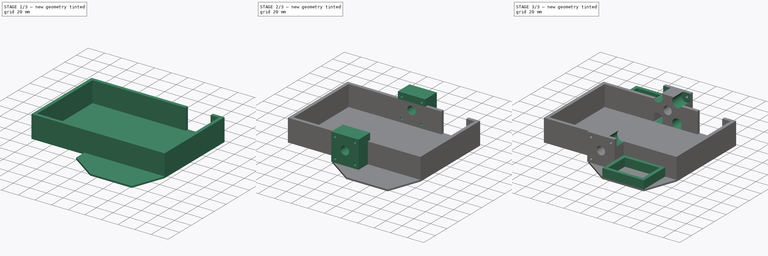
[diagram: build sequence overview — one tinted view per stage of 3, left to right]
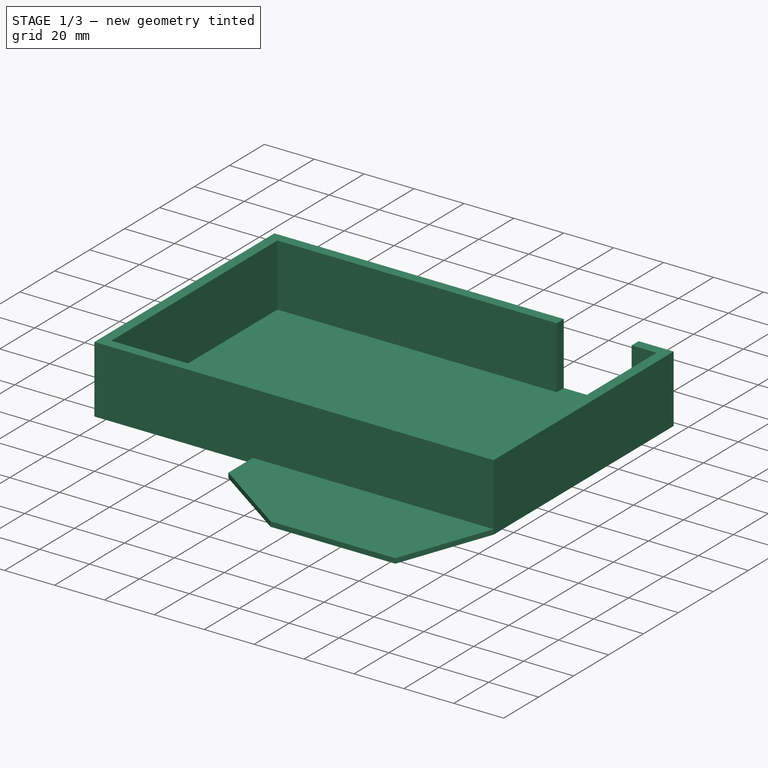
[diagram: stage 1 of 3 — iso view after this stage's code; geometry added in this stage tinted green]
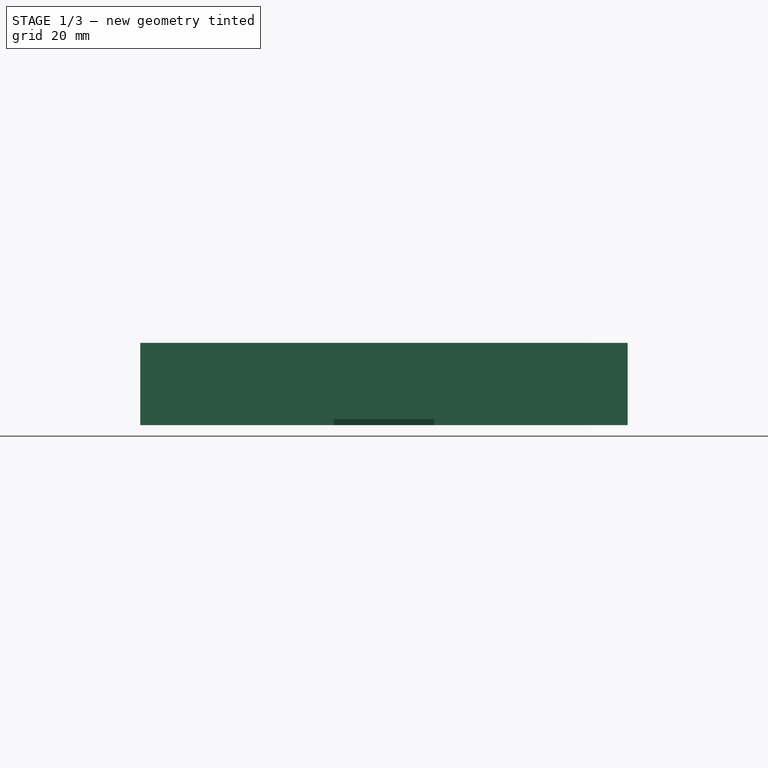
[diagram: stage 1 of 3 — front view after this stage's code; geometry added in this stage tinted green]
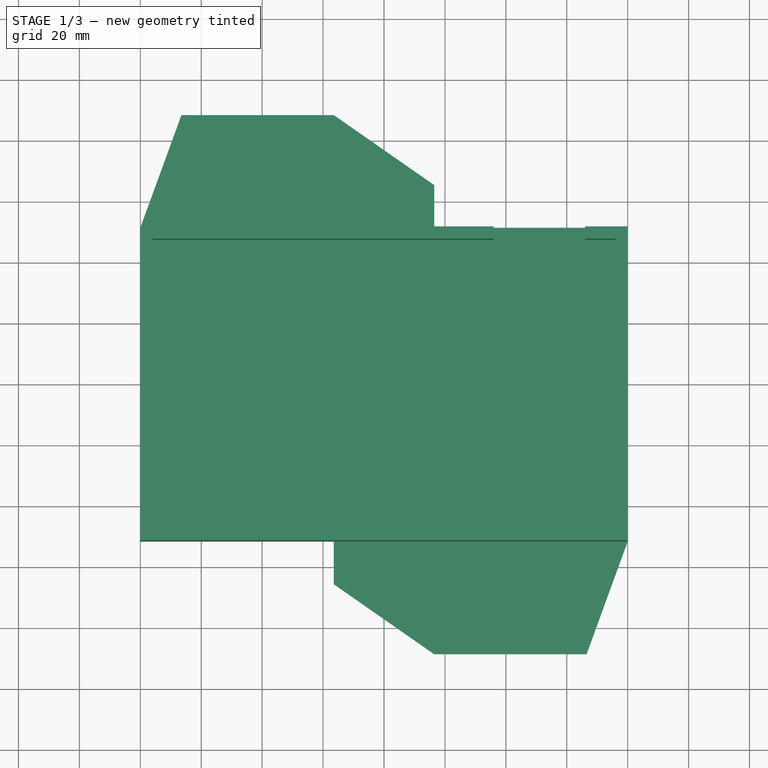
[diagram: stage 1 of 3 — top view after this stage's code; geometry added in this stage tinted green]
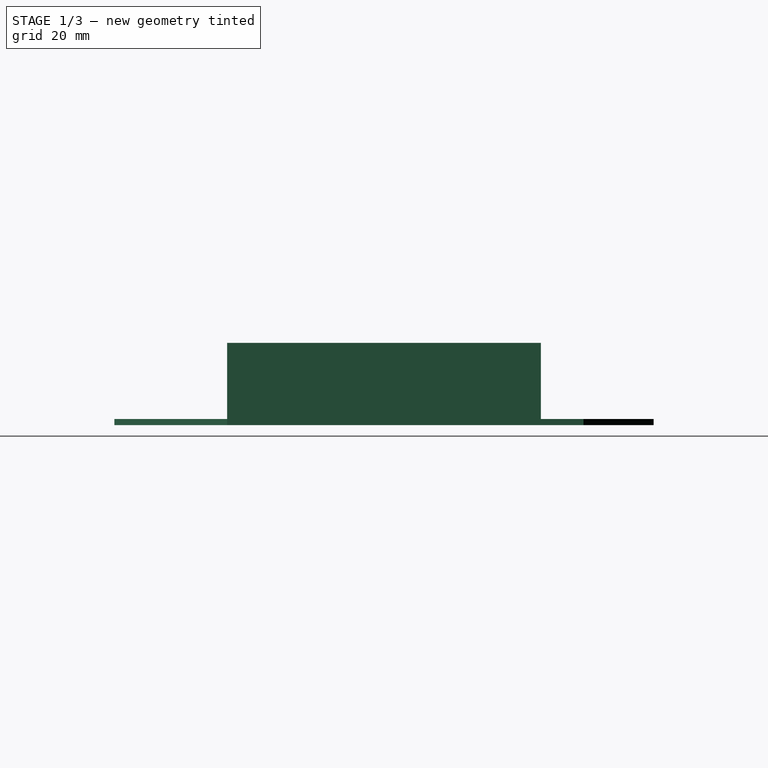
[diagram: stage 1 of 3 — right view after this stage's code; geometry added in this stage tinted green]
FCSTD DOCUMENT  (FreeCAD 1.0RUnknown)
Label: chassis-v3
License: All rights reserved
LicenseURL: https://en.wikipedia.org/wiki/All_rights_reserved
objects: Sketcher::SketchObject×6, PartDesign::Pad×4, PartDesign::Pocket×2, PartDesign::Body×1, App::Part×1
note: 31 computed .brp shape members not serialized (recipe doc carries the construction recipe); baked Part::Feature solids carry a one-line shape summary decoded from their .brp

FEATURE [Sketcher::SketchObject] Sketch058
  ArcFitTolerance = 0
  AttachmentSupport = -> [XZ_Plane021]
  FullyConstrained = true
  MakeInternals = false
  MapMode = 5
  Placement = pos=(0,0,0) rot=(1,0,0;1.5708rad)
  sketch-geometry (23):
    g0: Circle [constr] CenterX=-12.0208 CenterY=28.5208 CenterZ=0 NormalX=0 NormalY=0 NormalZ=1 AngleXU=0 Radius=6.33452
    g1: Circle [constr] CenterX=12.0208 CenterY=28.5208 CenterZ=0 NormalX=0 NormalY=0 NormalZ=1 AngleXU=0 Radius=6.33452
    g2: Circle [constr] CenterX=-12.0208 CenterY=4.47918 CenterZ=0 NormalX=0 NormalY=0 NormalZ=1 AngleXU=0 Radius=6.33452
    g3: Circle [constr] CenterX=12.0208 CenterY=4.47918 CenterZ=0 NormalX=0 NormalY=0 NormalZ=1 AngleXU=0 Radius=6.33452
    g4: LineSegment [constr] StartX=-12.0208 StartY=4.47918 StartZ=0 EndX=12.0208 EndY=28.5208 EndZ=0
    g5: LineSegment [constr] StartX=-12.0208 StartY=28.5208 StartZ=0 EndX=12.0208 EndY=4.47918 EndZ=0
    g6: GeomPoint [constr] X=0 Y=16.5 Z=0
    g7: LineSegment [constr] StartX=-16.5 StartY=33 StartZ=0 EndX=16.5 EndY=33 EndZ=0
    g8: LineSegment [constr] StartX=16.5 StartY=33 StartZ=0 EndX=16.5 EndY=0 EndZ=0
    g9: LineSegment [constr] StartX=16.5 StartY=0 StartZ=0 EndX=-16.5 EndY=0 EndZ=0
    g10: LineSegment [constr] StartX=-16.5 StartY=0 StartZ=0 EndX=-16.5 EndY=33 EndZ=0
    g11: LineSegment StartX=-16.5 StartY=33 StartZ=0 EndX=-16.5 EndY=24.0416 EndZ=0
    g12: LineSegment StartX=-16.5 StartY=33 StartZ=0 EndX=-7.54163 EndY=33 EndZ=0
    g13: LineSegment StartX=16.5 StartY=33 StartZ=0 EndX=16.5 EndY=24.0416 EndZ=0
    g14: LineSegment StartX=16.5 StartY=33 StartZ=0 EndX=7.54163 EndY=33 EndZ=0
    g15: LineSegment StartX=-16.5 StartY=0 StartZ=0 EndX=-16.5 EndY=8.95837 EndZ=0
    g16: LineSegment StartX=-16.5 StartY=0 StartZ=0 EndX=-7.54163 EndY=1.599e-13 EndZ=0
    g17: LineSegment StartX=16.5 StartY=0 StartZ=0 EndX=7.54163 EndY=2.7e-15 EndZ=0
    g18: LineSegment StartX=16.5 StartY=0 StartZ=0 EndX=16.5 EndY=8.95837 EndZ=0
    g19: ArcOfCircle CenterX=-12.0208 CenterY=4.47918 CenterZ=0 NormalX=0 NormalY=0 NormalZ=1 AngleXU=0 Radius=6.33452 StartAngle=5.49779 EndAngle=8.63938
    g20: ArcOfCircle CenterX=12.0208 CenterY=4.47918 CenterZ=0 NormalX=0 NormalY=0 NormalZ=1 AngleXU=0 Radius=6.33452 StartAngle=0.785398 EndAngle=3.92699
    g21: ArcOfCircle CenterX=-12.0208 CenterY=28.5208 CenterZ=0 NormalX=0 NormalY=0 NormalZ=1 AngleXU=0 Radius=6.33452 StartAngle=3.92699 EndAngle=7.06858
    g22: ArcOfCircle CenterX=12.0208 CenterY=28.5208 CenterZ=0 NormalX=0 NormalY=0 NormalZ=1 AngleXU=0 Radius=6.33452 StartAngle=2.35619 EndAngle=5.49779
  constraints (59):
    c: Equal(g0,g2)
    c: Equal(g2,g3)
    c: Equal(g3,g1)
    c: Coincident(g4,g2)
    c: Coincident(g4,g1)
    c: Coincident(g5,g0)
    c: Coincident(g5,g3)
    c: Perpendicular(g5,g4)
    c: Equal(g4,g5)
    c: Angle(g-2,g5) = 0.785398
    c: Distance(g5) = 34
    c: Symmetric(g2,g1,g6)
    c: Symmetric(g3,g0,g6)
    c: PointOnObject(g6,g-2)
    c: DistanceY(g-1,g6) = 16.5
    c: Coincident(g7,g8)
    c: Coincident(g8,g9)
    c: Coincident(g9,g10)
    c: Coincident(g10,g7)
    c: Horizontal(g7)
    c: Horizontal(g9)
    c: Vertical(g8)
    c: Vertical(g10)
    c: Distance(g9) = 33
    c: Equal(g8,g9)
    c: PointOnObject(g7,g0)
    c: Coincident(g11,g7)
    c: Coincident(g12,g11)
    c: Coincident(g13,g7)
    c: Coincident(g14,g13)
    c: Symmetric(g9,g13,g6)
    c: Coincident(g15,g9)
    c: Coincident(g16,g15)
    c: Coincident(g17,g8)
    c: Coincident(g18,g17)
    c: PointOnObject(g18,g8)
    c: PointOnObject(g17,g9)
    c: PointOnObject(g16,g9)
    c: PointOnObject(g15,g10)
    c: PointOnObject(g11,g10)
    c: PointOnObject(g12,g7)
    c: PointOnObject(g14,g7)
    c: PointOnObject(g13,g8)
    c: PointOnObject(g13,g1)
    c: PointOnObject(g12,g0)
    c: PointOnObject(g15,g2)
    c: Coincident(g19,g2)
    c: Coincident(g19,g15)
    c: Coincident(g19,g16)
    c: Coincident(g20,g3)
    c: Coincident(g20,g17)
    c: Coincident(g20,g18)
    c: Coincident(g21,g0)
    c: Coincident(g21,g12)
    c: Coincident(g21,g11)
    c: Coincident(g22,g1)
    c: Coincident(g22,g13)
    c: Coincident(g22,g14)
    c: PointOnObject(g17,g3)
FEATURE [Sketcher::SketchObject] Sketch051
  ArcFitTolerance = 0
  AttachmentSupport = -> [XY_Plane021]
  FullyConstrained = true
  MakeInternals = false
  MapMode = 5
  sketch-geometry (26):
    g0: LineSegment StartX=-62.5 StartY=84.5 StartZ=0 EndX=-20.5 EndY=84.5 EndZ=0
    g1: LineSegment StartX=-20.5 StartY=84.5 StartZ=0 EndX=-20.5 EndY=55.5 EndZ=0
    g2: LineSegment StartX=-20.5 StartY=55.5 StartZ=0 EndX=-62.5 EndY=55.5 EndZ=0
    g3: LineSegment StartX=-62.5 StartY=55.5 StartZ=0 EndX=-62.5 EndY=84.5 EndZ=0
    g4: LineSegment StartX=-66.5 StartY=88.5 StartZ=0 EndX=-16.5 EndY=88.5 EndZ=0
    g5: LineSegment StartX=-16.5 StartY=88.5 StartZ=0 EndX=-16.5 EndY=51.5 EndZ=0
    g6: LineSegment StartX=-16.5 StartY=51.5 StartZ=0 EndX=-66.5 EndY=51.5 EndZ=0
    g7: LineSegment StartX=-66.5 StartY=51.5 StartZ=0 EndX=-66.5 EndY=88.5 EndZ=0
    g8: LineSegment [constr] StartX=-62.5 StartY=84.5 StartZ=0 EndX=-62.5 EndY=88.5 EndZ=0
    g9: LineSegment [constr] StartX=-62.5 StartY=84.5 StartZ=0 EndX=-66.5 EndY=84.5 EndZ=0
    g10: LineSegment [constr] StartX=-20.5 StartY=55.5 StartZ=0 EndX=-20.5 EndY=51.5 EndZ=0
    g11: LineSegment [constr] StartX=-20.5 StartY=55.5 StartZ=0 EndX=-16.5 EndY=55.5 EndZ=0
    g12: LineSegment StartX=62.5 StartY=-84.5 StartZ=0 EndX=20.5 EndY=-84.5 EndZ=0
    g13: LineSegment StartX=20.5 StartY=-84.5 StartZ=0 EndX=20.5 EndY=-55.5 EndZ=0
    g14: LineSegment StartX=20.5 StartY=-55.5 StartZ=0 EndX=62.5 EndY=-55.5 EndZ=0
    g15: LineSegment StartX=62.5 StartY=-55.5 StartZ=0 EndX=62.5 EndY=-84.5 EndZ=0
    g16: LineSegment StartX=66.5 StartY=-88.5 StartZ=0 EndX=16.5 EndY=-88.5 EndZ=0
    g17: LineSegment StartX=16.5 StartY=-88.5 StartZ=0 EndX=16.5 EndY=-51.5 EndZ=0
    g18: LineSegment StartX=16.5 StartY=-51.5 StartZ=0 EndX=66.5 EndY=-51.5 EndZ=0
    g19: LineSegment StartX=66.5 StartY=-51.5 StartZ=0 EndX=66.5 EndY=-88.5 EndZ=0
    g20: LineSegment [constr] StartX=62.5 StartY=-84.5 StartZ=0 EndX=62.5 EndY=-88.5 EndZ=0
    g21: LineSegment [constr] StartX=62.5 StartY=-84.5 StartZ=0 EndX=66.5 EndY=-84.5 EndZ=0
    g22: LineSegment [constr] StartX=20.5 StartY=-55.5 StartZ=0 EndX=20.5 EndY=-51.5 EndZ=0
    g23: LineSegment [constr] StartX=20.5 StartY=-55.5 StartZ=0 EndX=16.5 EndY=-55.5 EndZ=0
    g24: LineSegment [constr] StartX=-16.5 StartY=51.5 StartZ=0 EndX=0 EndY=51.5 EndZ=0
    g25: LineSegment [constr] StartX=16.5 StartY=-51.5 StartZ=0 EndX=0 EndY=-51.5 EndZ=0
  constraints (78):
    c: Coincident(g1,g0)
    c: Coincident(g2,g1)
    c: Coincident(g3,g2)
    c: Coincident(g3,g0)
    c: Perpendicular(g0,g3)
    c: Perpendicular(g0,g1)
    c: Perpendicular(g2,g1)
    c: Distance(g2) = 42
    c: Horizontal(g2)
    c: Coincident(g4,g5)
    c: Coincident(g5,g6)
    c: Coincident(g6,g7)
    c: Coincident(g7,g4)
    c: Horizontal(g4)
    c: Horizontal(g6)
    c: Vertical(g5)
    c: Vertical(g7)
    c: Coincident(g8,g0)
    c: PointOnObject(g8,g4)
    c: Coincident(g9,g0)
    c: PointOnObject(g9,g7)
    c: Horizontal(g9)
    c: Coincident(g10,g1)
    c: PointOnObject(g10,g6)
    c: Coincident(g11,g1)
    c: PointOnObject(g11,g5)
    c: Horizontal(g11)
    c: Vertical(g8)
    c: Vertical(g10)
    c: Equal(g8,g9)
    c: Equal(g11,g10)
    c: Equal(g10,g9)
    c: DistanceX(g5,g-1) = 16.5
    c: DistanceY(g-1,g5) = 51.5
    c: Coincident(g13,g12)
    c: Coincident(g14,g13)
    c: Coincident(g15,g14)
    c: Coincident(g15,g12)
    c: Perpendicular(g12,g15)
    c: Perpendicular(g12,g13)
    c: Perpendicular(g14,g13)
    c: Distance(g14) = 42
    c: Distance(g15) = 29
    c: Horizontal(g14)
    c: Coincident(g16,g17)
    c: Coincident(g17,g18)
    c: Coincident(g18,g19)
    c: Coincident(g19,g16)
    c: Horizontal(g16)
    c: Horizontal(g18)
    c: Vertical(g17)
    c: Vertical(g19)
    c: Coincident(g20,g12)
    c: PointOnObject(g20,g16)
    c: Coincident(g21,g12)
    c: PointOnObject(g21,g19)
    c: Horizontal(g21)
    c: Coincident(g22,g13)
    c: PointOnObject(g22,g18)
    c: Coincident(g23,g13)
    c: PointOnObject(g23,g17)
    c: Horizontal(g23)
    c: Vertical(g20)
    c: Vertical(g22)
    c: Equal(g20,g21)
    c: Equal(g23,g22)
    c: Equal(g22,g21)
    c: Distance(g20) = 4
    c: DistanceY(g17,g-1) = 51.5
    c: Equal(g3,g15)
    c: Equal(g8,g20)
    c: Coincident(g24,g5)
    c: PointOnObject(g24,g-2)
    c: Horizontal(g24)
    c: Coincident(g25,g17)
    c: PointOnObject(g25,g-2)
    c: Horizontal(g25)
    c: Equal(g25,g24)
FEATURE [Sketcher::SketchObject] Sketch050
  ArcFitTolerance = 0
  AttachmentSupport = -> [XZ_Plane021]
  FullyConstrained = false
  MakeInternals = false
  MapMode = 5
  Placement = pos=(0,0,0) rot=(1,0,0;1.5708rad)
  sketch-geometry (9):
    g0: Circle CenterX=-12.0208 CenterY=4.47918 CenterZ=0 NormalX=0 NormalY=0 NormalZ=1 AngleXU=0 Radius=1.5
    g1: Circle CenterX=12.0208 CenterY=28.5208 CenterZ=0 NormalX=0 NormalY=0 NormalZ=1 AngleXU=0 Radius=1.5
    g2: Circle CenterX=-12.0208 CenterY=28.5208 CenterZ=0 NormalX=0 NormalY=0 NormalZ=1 AngleXU=0 Radius=1.5
    g3: Circle CenterX=12.0208 CenterY=4.47918 CenterZ=0 NormalX=0 NormalY=0 NormalZ=1 AngleXU=0 Radius=1.5
    g4: LineSegment [constr] StartX=-12.0208 StartY=4.47918 StartZ=0 EndX=12.0208 EndY=28.5208 EndZ=0
    g5: LineSegment [constr] StartX=12.0208 StartY=4.47918 StartZ=0 EndX=-12.0208 EndY=28.5208 EndZ=0
    g6: GeomPoint [constr] X=0 Y=16.5 Z=0
    g7: GeomPoint [constr] X=0 Y=31 Z=0
    g8: Circle CenterX=0 CenterY=16.5 CenterZ=0 NormalX=0 NormalY=0 NormalZ=1 AngleXU=0 Radius=5
  constraints (19):
    c: Coincident(g4,g0)
    c: Coincident(g4,g1)
    c: Coincident(g5,g3)
    c: Coincident(g5,g2)
    c: Equal(g0,g1)
    c: Equal(g1,g2)
    c: Equal(g3,g1)
    c: Symmetric(g0,g1,g6)
    c: Symmetric(g3,g2,g6)
    c: Distance(g5) = 34
    c: Diameter(g2) = 3
    c: DistanceY(g-1,g6) = 16.5
    c: PointOnObject(g7,g-2)
    c: Diameter(g8) = 10
    c: Coincident(g6,g8)
    c: Equal(g4,g5)
    c: PointOnObject(g8,g-2)
    c: Perpendicular(g5,g4)
    c: Angle(g-2,g5) = 0.785398
FEATURE [Sketcher::SketchObject] Sketch047
  ArcFitTolerance = 0
  AttachmentSupport = -> [XY_Plane021]
  FullyConstrained = true
  MakeInternals = false
  MapMode = 5
  sketch-geometry (29):
    g0: LineSegment StartX=76 StartY=47.5 StartZ=0 EndX=76 EndY=-47.5 EndZ=0
    g1: LineSegment StartX=-76 StartY=-47.5 StartZ=0 EndX=-76 EndY=47.5 EndZ=0
    g2: LineSegment StartX=-76 StartY=47.5 StartZ=0 EndX=-15.5 EndY=47.5 EndZ=0
    g3: LineSegment StartX=-15.5 StartY=47.5 StartZ=0 EndX=15.5 EndY=47.5 EndZ=0
    g4: LineSegment StartX=-15.5 StartY=-47.5 StartZ=0 EndX=-76 EndY=-47.5 EndZ=0
    g5: LineSegment StartX=76 StartY=-47.5 StartZ=0 EndX=15.5 EndY=-47.5 EndZ=0
    g6: LineSegment StartX=15.5 StartY=-47.5 StartZ=0 EndX=-15.5 EndY=-47.5 EndZ=0
    g7: GeomPoint [constr] X=-3.1e-15 Y=47.5 Z=0
    g8: LineSegment [constr] StartX=-15.5 StartY=47.5 StartZ=0 EndX=-15.5 EndY=51.5 EndZ=0
    g9: LineSegment [constr] StartX=15.5 StartY=47.5 StartZ=0 EndX=15.5 EndY=51.5 EndZ=0
    g10: LineSegment [constr] StartX=-15.5 StartY=-47.5 StartZ=0 EndX=-15.5 EndY=-51.5 EndZ=0
    g11: LineSegment [constr] StartX=15.5 StartY=-47.5 StartZ=0 EndX=15.5 EndY=-51.5 EndZ=0
    g12: LineSegment StartX=-15.5 StartY=-51.5 StartZ=0 EndX=-80 EndY=-51.5 EndZ=0
    g13: LineSegment StartX=-80 StartY=-51.5 StartZ=0 EndX=-80 EndY=51.5 EndZ=0
    g14: LineSegment StartX=-80 StartY=51.5 StartZ=0 EndX=-15.5 EndY=51.5 EndZ=0
    g15: LineSegment StartX=80 StartY=51.5 StartZ=0 EndX=80 EndY=-51.5 EndZ=0
    g16: LineSegment StartX=80 StartY=-51.5 StartZ=0 EndX=15.5 EndY=-51.5 EndZ=0
    g17: LineSegment [constr] StartX=-76 StartY=-47.5 StartZ=0 EndX=-80 EndY=-47.5 EndZ=0
    g18: LineSegment [constr] StartX=76 StartY=-47.5 StartZ=0 EndX=80 EndY=-47.5 EndZ=0
    g19: LineSegment StartX=15.5 StartY=47.5 StartZ=0 EndX=36 EndY=47.5 EndZ=0
    g20: LineSegment [constr] StartX=36 StartY=47.5 StartZ=0 EndX=66 EndY=47.5 EndZ=0
    g21: LineSegment StartX=66 StartY=47.5 StartZ=0 EndX=76 EndY=47.5 EndZ=0
    g22: LineSegment StartX=15.5 StartY=51.5 StartZ=0 EndX=36 EndY=51.5 EndZ=0
    g23: LineSegment [constr] StartX=36 StartY=51.5 StartZ=0 EndX=66 EndY=51.5 EndZ=0
    g24: LineSegment StartX=66 StartY=51.5 StartZ=0 EndX=80 EndY=51.5 EndZ=0
    g25: LineSegment StartX=36 StartY=51.5 StartZ=0 EndX=36 EndY=47.5 EndZ=0
    g26: LineSegment StartX=66 StartY=47.5 StartZ=0 EndX=66 EndY=51.5 EndZ=0
    g27: LineSegment StartX=-15.5 StartY=51.5 StartZ=0 EndX=15.5 EndY=51.5 EndZ=0
    g28: LineSegment StartX=-15.5 StartY=-51.5 StartZ=0 EndX=15.5 EndY=-51.5 EndZ=0
  constraints (77):
    c: Coincident(g21,g0)
    c: Coincident(g0,g5)
    c: Coincident(g4,g1)
    c: Coincident(g1,g2)
    c: Vertical(g0)
    c: Vertical(g1)
    c: Symmetric(g2,g0,g-1)
    c: Distance(g0) = 95
    c: Coincident(g2,g3)
    c: Horizontal(g2)
    c: Distance(g2,g21) = 152
    c: Coincident(g3,g19)
    c: Horizontal(g3)
    c: Coincident(g6,g4)
    c: Horizontal(g4)
    c: Coincident(g5,g6)
    c: Horizontal(g5)
    c: Horizontal(g6)
    c: Equal(g6,g3)
    c: Equal(g2,g4)
    c: Distance(g3) = 31
    c: Symmetric(g1,g0,g7)
    c: Symmetric(g2,g3,g7)
    c: Coincident(g8,g2)
    c: Coincident(g9,g19)
    c: Vertical(g9)
    c: Coincident(g10,g4)
    c: Vertical(g10)
    c: Coincident(g11,g5)
    c: Vertical(g11)
    c: Coincident(g12,g10)
    c: Horizontal(g12)
    c: Coincident(g13,g12)
    c: Vertical(g13)
    c: Coincident(g14,g13)
    c: Coincident(g14,g8)
    c: Horizontal(g14)
    c: Coincident(g22,g9)
    c: Coincident(g15,g24)
    c: Vertical(g15)
    c: Coincident(g16,g15)
    c: Coincident(g16,g11)
    c: Horizontal(g16)
    c: Equal(g8,g9)
    c: Vertical(g8)
    c: Equal(g10,g11)
    c: Equal(g10,g8)
    c: Coincident(g17,g1)
    c: PointOnObject(g17,g13)
    c: Coincident(g18,g0)
    c: PointOnObject(g18,g15)
    c: Horizontal(g18)
    c: Horizontal(g17)
    c: Equal(g17,g18)
    c: Equal(g18,g10)
    c: Distance(g8) = 4
    c: Coincident(g19,g20)
    c: Coincident(g20,g21)
    c: Coincident(g22,g23)
    c: Horizontal(g22)
    c: Coincident(g23,g24)
    c: Horizontal(g23)
    c: Horizontal(g24)
    c: Coincident(g25,g22)
    c: Coincident(g25,g19)
    c: Vertical(g25)
    c: Coincident(g26,g20)
    c: Coincident(g26,g23)
    c: Vertical(g26)
    c: Horizontal(g19)
    c: Horizontal(g21)
    c: Distance(g21) = 10
    c: Coincident(g27,g8)
    c: Coincident(g27,g9)
    c: Coincident(g28,g10)
    c: Coincident(g28,g11)
    c: Distance(g23) = 30
FEATURE [Sketcher::SketchObject] Sketch046
  ArcFitTolerance = 0
  AttachmentSupport = -> [XY_Plane021]
  FullyConstrained = true
  MakeInternals = false
  MapMode = 5
  expr: Constraints[111] = 2 * 4 + 42
  sketch-geometry (46):
    g0: LineSegment [constr] StartX=-80 StartY=0 StartZ=0 EndX=80 EndY=0 EndZ=0
    g1: LineSegment [constr] StartX=0 StartY=77 StartZ=0 EndX=0 EndY=-77 EndZ=0
    g2: LineSegment [constr] StartX=-75 StartY=46.5 StartZ=0 EndX=75 EndY=46.5 EndZ=0
    g3: LineSegment [constr] StartX=75 StartY=46.5 StartZ=0 EndX=75 EndY=-46.5 EndZ=0
    g4: LineSegment [constr] StartX=75 StartY=-46.5 StartZ=0 EndX=-75 EndY=-46.5 EndZ=0
    g5: LineSegment [constr] StartX=-75 StartY=-46.5 StartZ=0 EndX=-75 EndY=46.5 EndZ=0
    g6: LineSegment [constr] StartX=16.5 StartY=46.5 StartZ=0 EndX=16.5 EndY=51.5 EndZ=0
    g7: LineSegment [constr] StartX=-16.5 StartY=46.5 StartZ=0 EndX=-16.5 EndY=51.5 EndZ=0
    g8: LineSegment [constr] StartX=-16.5 StartY=-51.5 StartZ=0 EndX=-16.5 EndY=-46.5 EndZ=0
    g9: LineSegment [constr] StartX=16.5 StartY=-51.5 StartZ=0 EndX=16.5 EndY=-46.5 EndZ=0
    g10: LineSegment [constr] StartX=16.5 StartY=-51.5 StartZ=0 EndX=-16.5 EndY=-51.5 EndZ=0
    g11: LineSegment [constr] StartX=16.5 StartY=51.5 StartZ=0 EndX=-16.5 EndY=51.5 EndZ=0
    g12: GeomPoint [constr] X=0 Y=46.5 Z=0
    g13: GeomPoint [constr] X=0 Y=-46.5 Z=0
    g14: GeomPoint [constr] X=2e-16 Y=-51.5 Z=0
    g15: GeomPoint [constr] X=-75 Y=-2.2e-15 Z=0
    g16: LineSegment [constr] StartX=-80 StartY=51.5 StartZ=0 EndX=80 EndY=51.5 EndZ=0
    g17: LineSegment [constr] StartX=80 StartY=51.5 StartZ=0 EndX=80 EndY=-51.5 EndZ=0
    g18: LineSegment [constr] StartX=80 StartY=-51.5 StartZ=0 EndX=-80 EndY=-51.5 EndZ=0
    g19: LineSegment [constr] StartX=-80 StartY=-51.5 StartZ=0 EndX=-80 EndY=51.5 EndZ=0
    g20: LineSegment [constr] StartX=-16.5 StartY=51.5 StartZ=0 EndX=-16.5 EndY=88.5 EndZ=0
    g21: LineSegment [constr] StartX=16.5 StartY=51.5 StartZ=0 EndX=16.5 EndY=65.5 EndZ=0
    g22: LineSegment [constr] StartX=-16.5 StartY=-51.5 StartZ=0 EndX=-16.5 EndY=-65.5 EndZ=0
    g23: LineSegment [constr] StartX=16.5 StartY=-51.5 StartZ=0 EndX=16.5 EndY=-88.5 EndZ=0
    g24: LineSegment [constr] StartX=-80 StartY=88.5 StartZ=0 EndX=-80 EndY=51.5 EndZ=0
    g25: LineSegment [constr] StartX=-16.5 StartY=88.5 StartZ=0 EndX=-80 EndY=88.5 EndZ=0
    g26: LineSegment [constr] StartX=80 StartY=65.5 StartZ=0 EndX=16.5 EndY=65.5 EndZ=0
    g27: LineSegment StartX=16.5 StartY=65.5 StartZ=0 EndX=-16.5 EndY=88.5 EndZ=0
    g28: LineSegment [constr] StartX=80 StartY=51.5 StartZ=0 EndX=80 EndY=65.5 EndZ=0
    g29: LineSegment [constr] StartX=80 StartY=-88.5 StartZ=0 EndX=80 EndY=-51.5 EndZ=0
    g30: LineSegment StartX=80 StartY=-51.5 StartZ=0 EndX=80 EndY=51.5 EndZ=0
    g31: LineSegment StartX=-80 StartY=51.5 StartZ=0 EndX=-80 EndY=-51.5 EndZ=0
    g32: LineSegment [constr] StartX=-80 StartY=-51.5 StartZ=0 EndX=-80 EndY=-65.5 EndZ=0
    g33: LineSegment [constr] StartX=-80 StartY=-65.5 StartZ=0 EndX=-16.5 EndY=-65.5 EndZ=0
    g34: LineSegment StartX=-16.5 StartY=-65.5 StartZ=0 EndX=16.5 EndY=-88.5 EndZ=0
    g35: LineSegment [constr] StartX=16.5 StartY=-88.5 StartZ=0 EndX=80 EndY=-88.5 EndZ=0
    g36: LineSegment StartX=16.5 StartY=-88.5 StartZ=0 EndX=66.5 EndY=-88.5 EndZ=0
    g37: LineSegment StartX=66.5 StartY=-88.5 StartZ=0 EndX=80 EndY=-51.5 EndZ=0
    g38: LineSegment StartX=-80 StartY=51.5 StartZ=0 EndX=-66.5 EndY=88.5 EndZ=0
    g39: LineSegment StartX=-66.5 StartY=88.5 StartZ=0 EndX=-16.5 EndY=88.5 EndZ=0
    g40: LineSegment [constr] StartX=16.5 StartY=-51.5 StartZ=0 EndX=66.5 EndY=-88.5 EndZ=0
    g41: LineSegment [constr] StartX=-16.5 StartY=51.5 StartZ=0 EndX=-66.5 EndY=88.5 EndZ=0
    g42: LineSegment StartX=80 StartY=51.5 StartZ=0 EndX=16.5 EndY=51.5 EndZ=0
    g43: LineSegment StartX=16.5 StartY=51.5 StartZ=0 EndX=16.5 EndY=65.5 EndZ=0
    g44: LineSegment StartX=-80 StartY=-51.5 StartZ=0 EndX=-16.5 EndY=-51.5 EndZ=0
    g45: LineSegment StartX=-16.5 StartY=-51.5 StartZ=0 EndX=-16.5 EndY=-65.5 EndZ=0
  constraints (124):
    c: Horizontal(g0)
    c: Symmetric(g0,g0,g-1)
    c: Vertical(g1)
    c: Symmetric(g1,g1,g-1)
    c: Coincident(g33,g32)
    c: Coincident(g29,g35)
    c: Coincident(g26,g28)
    c: Coincident(g25,g24)
    c: Horizontal(g2)
    c: Coincident(g3,g2)
    c: Vertical(g3)
    c: Coincident(g4,g3)
    c: Horizontal(g4)
    c: Coincident(g5,g4)
    c: Coincident(g5,g2)
    c: Vertical(g5)
    c: Distance(g2) = 150
    c: Distance(g3) = 93
    c: Symmetric(g2,g4,g-1)
    c: Vertical(g6)
    c: Vertical(g7)
    c: Vertical(g9)
    c: Coincident(g10,g9)
    c: Coincident(g10,g8)
    c: Horizontal(g10)
    c: PointOnObject(g8,g4)
    c: PointOnObject(g9,g4)
    c: PointOnObject(g6,g2)
    c: PointOnObject(g7,g2)
    c: Coincident(g11,g6)
    c: Coincident(g11,g7)
    c: Horizontal(g11)
    c: PointOnObject(g12,g1)
    c: PointOnObject(g13,g1)
    c: Symmetric(g6,g7,g12) = 29
    c: Distance(g11) = 33
    c: Equal(g8,g7)
    c: Vertical(g8)
    c: Symmetric(g8,g9,g13)
    c: Equal(g11,g10)
    c: Symmetric(g8,g9,g14)
    c: Symmetric(g2,g4,g15)
    c: Coincident(g16,g17)
    c: Coincident(g17,g18)
    c: Coincident(g18,g19)
    c: Coincident(g19,g16)
    c: Horizontal(g16)
    c: Horizontal(g18)
    c: Vertical(g17)
    c: Vertical(g19)
    c: Symmetric(g16,g17,g-1)
    c: Distance(g16) = 160
    c: Distance(g19) = 103
    c: Coincident(g20,g7)
    c: Vertical(g20)
    c: Coincident(g21,g6)
    c: Vertical(g21)
    c: Coincident(g22,g8)
    c: Vertical(g22)
    c: Coincident(g23,g9)
    c: Vertical(g23)
    c: Coincident(g24,g31)
    c: Vertical(g24)
    c: Coincident(g27,g25)
    c: Horizontal(g25)
    c: Coincident(g26,g27)
    c: Horizontal(g26)
    c: PointOnObject(g1,g27)
    c: PointOnObject(g20,g27)
    c: PointOnObject(g21,g27)
    c: Coincident(g30,g28)
    c: Vertical(g28)
    c: Coincident(g29,g30)
    c: Vertical(g29)
    c: Vertical(g30)
    c: PointOnObject(g0,g30)
    c: Coincident(g31,g32)
    c: Vertical(g31)
    c: Vertical(g32)
    c: PointOnObject(g0,g31)
    c: Coincident(g33,g34)
    c: Horizontal(g33)
    c: Coincident(g34,g35)
    c: Horizontal(g35)
    c: PointOnObject(g1,g34)
    c: PointOnObject(g22,g34)
    c: PointOnObject(g23,g34)
    c: PointOnObject(g7,g16)
    c: PointOnObject(g16,g24)
    c: PointOnObject(g24,g16)
    c: PointOnObject(g28,g16)
    c: PointOnObject(g26,g21)
    c: PointOnObject(g25,g20)
    c: PointOnObject(g29,g18)
    c: PointOnObject(g34,g23)
    c: PointOnObject(g33,g22)
    c: PointOnObject(g31,g18)
    c: Coincident(g44,g31)
    c: Coincident(g45,g34)
    c: Coincident(g36,g34)
    c: Coincident(g37,g30)
    c: Coincident(g42,g30)
    c: Coincident(g43,g27)
    c: Coincident(g38,g31)
    c: Coincident(g39,g27)
    c: Coincident(g36,g37)
    c: Coincident(g38,g39)
    c: Coincident(g40,g9)
    c: Coincident(g40,g36)
    c: Coincident(g41,g7)
    c: Coincident(g41,g38)
    c: DistanceX(g9,g36) = 50
    c: DistanceY(g36,g9) = 37
    c: DistanceY(g7,g38) = 37
    c: DistanceX(g38,g7) = 50
    c: Coincident(g42,g43)
    c: Coincident(g44,g45)
    c: Horizontal(g36)
    c: Horizontal(g39)
    c: DistanceY(g6,g27) = 14
    c: Horizontal(g42)
    c: Vertical(g43)
    c: Horizontal(g44)
    c: Vertical(g45)
FEATURE [PartDesign::Pad] Pad027  label="Floor003"
  Direction = (0,0,1)
  Length = 2
  Length2 = 10
  Profile = -> Sketch046
  ReferenceAxis = -> Sketch046 [N_Axis]
  Reversed = true
  Suppressed = false
  Type = 0
FEATURE [PartDesign::Pad] Pad028  label="Battery walls002"
  BaseFeature = -> Pad027
  Direction = (0,0,1)
  Length = 25
  Length2 = 10
  Profile = -> Sketch047
  ReferenceAxis = -> Sketch047 [N_Axis]
  Suppressed = false
  Type = 0
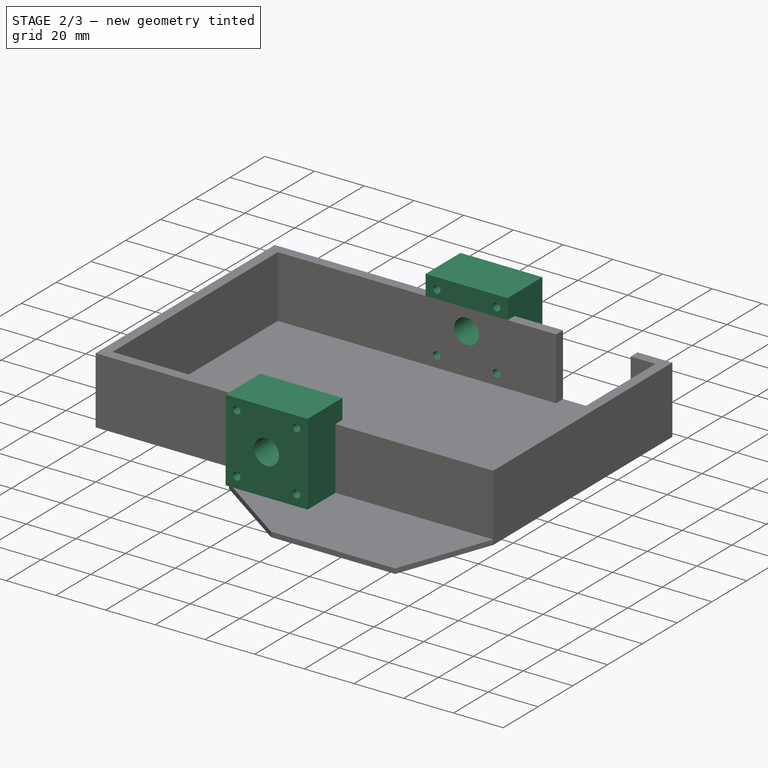
[diagram: stage 2 of 3 — iso view after this stage's code; geometry added in this stage tinted green]
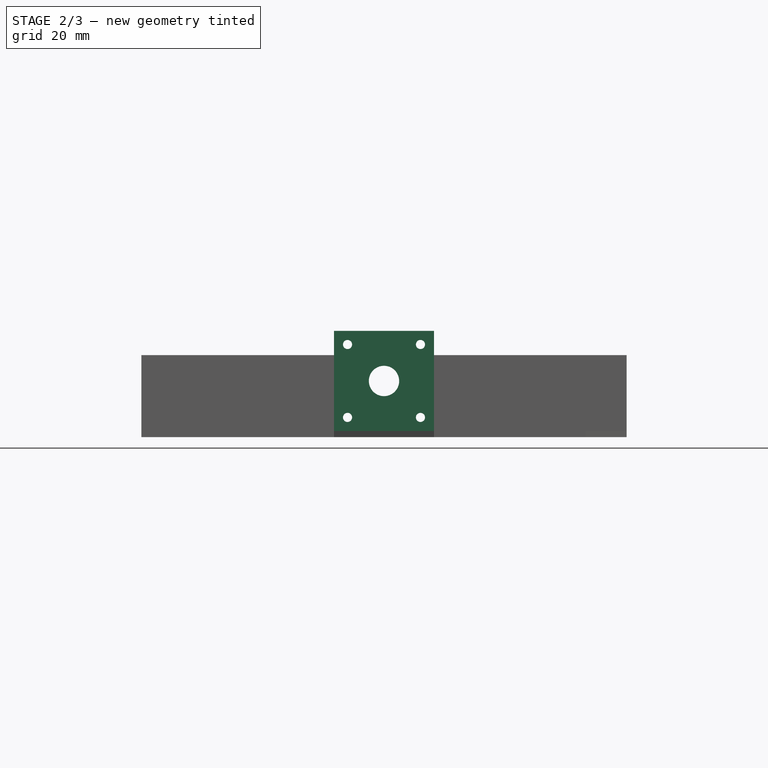
[diagram: stage 2 of 3 — front view after this stage's code; geometry added in this stage tinted green]
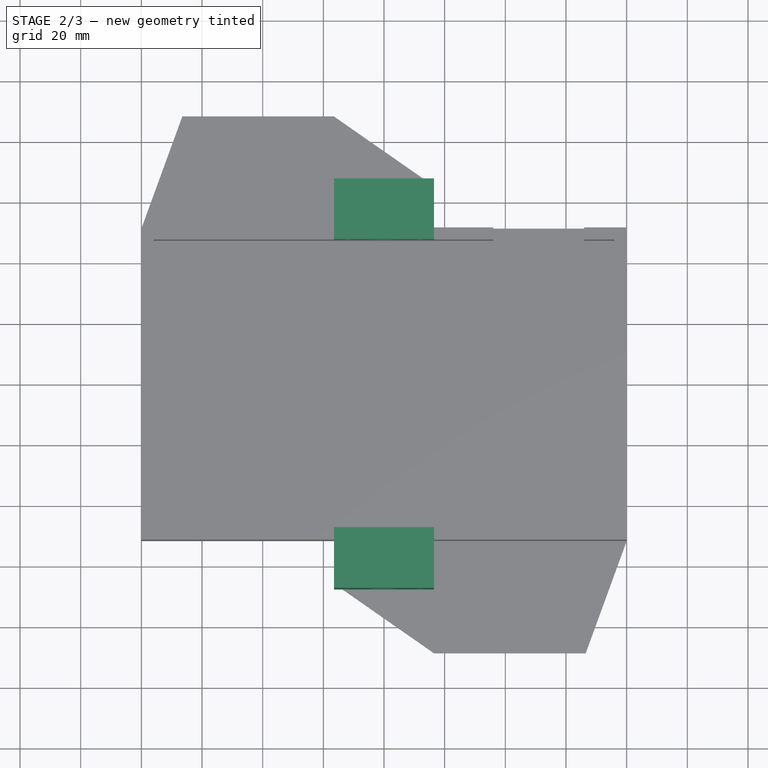
[diagram: stage 2 of 3 — top view after this stage's code; geometry added in this stage tinted green]
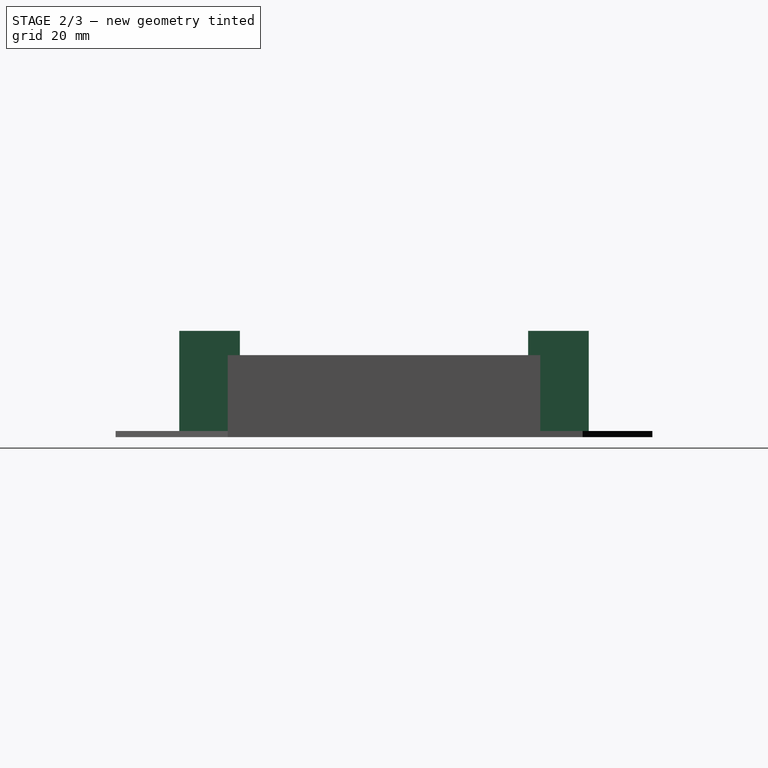
[diagram: stage 2 of 3 — right view after this stage's code; geometry added in this stage tinted green]
FEATURE [Sketcher::SketchObject] Sketch048
  ArcFitTolerance = 0
  AttachmentSupport = -> [Pad028]
  FullyConstrained = true
  MakeInternals = false
  MapMode = 5
  sketch-geometry (15):
    g0: LineSegment StartX=-16.5 StartY=67.5 StartZ=0 EndX=16.5 EndY=67.5 EndZ=0
    g1: LineSegment StartX=16.5 StartY=67.5 StartZ=0 EndX=16.5 EndY=51.5 EndZ=0
    g2: LineSegment [constr] StartX=16.5 StartY=51.5 StartZ=0 EndX=-16.5 EndY=51.5 EndZ=0
    g3: LineSegment StartX=-16.5 StartY=51.5 StartZ=0 EndX=-16.5 EndY=67.5 EndZ=0
    g4: LineSegment [constr] StartX=-16.5 StartY=-51.5 StartZ=0 EndX=16.5 EndY=-51.5 EndZ=0
    g5: LineSegment StartX=16.5 StartY=-51.5 StartZ=0 EndX=16.5 EndY=-67.5 EndZ=0
    g6: LineSegment StartX=16.5 StartY=-67.5 StartZ=0 EndX=-16.5 EndY=-67.5 EndZ=0
    g7: LineSegment StartX=-16.5 StartY=-67.5 StartZ=0 EndX=-16.5 EndY=-51.5 EndZ=0
    g8: LineSegment [constr] StartX=0 StartY=67.5 StartZ=0 EndX=0 EndY=-67.5 EndZ=0
    g9: LineSegment StartX=-16.5 StartY=-47.5 StartZ=0 EndX=16.5 EndY=-47.5 EndZ=0
    g10: LineSegment StartX=-16.5 StartY=47.5 StartZ=0 EndX=16.5 EndY=47.5 EndZ=0
    g11: LineSegment StartX=16.5 StartY=51.5 StartZ=0 EndX=16.5 EndY=47.5 EndZ=0
    g12: LineSegment StartX=-16.5 StartY=51.5 StartZ=0 EndX=-16.5 EndY=47.5 EndZ=0
    g13: LineSegment StartX=-16.5 StartY=-47.5 StartZ=0 EndX=-16.5 EndY=-51.5 EndZ=0
    g14: LineSegment StartX=16.5 StartY=-47.5 StartZ=0 EndX=16.5 EndY=-51.5 EndZ=0
  constraints (41):
    c: Coincident(g0,g1)
    c: Coincident(g1,g2)
    c: Coincident(g2,g3)
    c: Coincident(g3,g0)
    c: Horizontal(g0)
    c: Horizontal(g2)
    c: Vertical(g1)
    c: Vertical(g3)
    c: Coincident(g4,g5)
    c: Coincident(g5,g6)
    c: Coincident(g6,g7)
    c: Coincident(g7,g4)
    c: Horizontal(g4)
    c: Horizontal(g6)
    c: Vertical(g5)
    c: Vertical(g7)
    c: Vertical(g8)
    c: Symmetric(g6,g5,g8)
    c: Symmetric(g0,g0,g8)
    c: Symmetric(g8,g8,g-1)
    c: Equal(g2,g4)
    c: Equal(g1,g5)
    c: Distance(g3) = 16
    c: Distance(g0) = 33
    c: Horizontal(g9)
    c: Horizontal(g10)
    c: Coincident(g11,g1)
    c: Coincident(g11,g10)
    c: Coincident(g12,g3)
    c: Coincident(g12,g10)
    c: Vertical(g12)
    c: Coincident(g13,g9)
    c: Coincident(g13,g7)
    c: Coincident(g14,g9)
    c: Coincident(g14,g5)
    c: Vertical(g14)
    c: Vertical(g13)
    c: Vertical(g11)
    c: Distance(g13) = 4
    c: Distance(g12) = 4
    c: DistanceY(g-1,g10) = 47.5
FEATURE [PartDesign::Pad] Pad029  label="Motor_support"
  BaseFeature = -> Pad028
  Direction = (0,0,1)
  Length = 33
  Length2 = 10
  Profile = -> Sketch048
  ReferenceAxis = -> Sketch048 [N_Axis]
  Suppressed = false
  Type = 0
FEATURE [PartDesign::Pocket] Pocket020  label="Motor holes"
  BaseFeature = -> Pad029
  Direction = (0,1,-2e-16)
  Length = 203
  Length2 = 5
  Midplane = true
  Profile = -> Sketch050
  ReferenceAxis = -> Sketch050 [N_Axis]
  Suppressed = false
  Type = 0
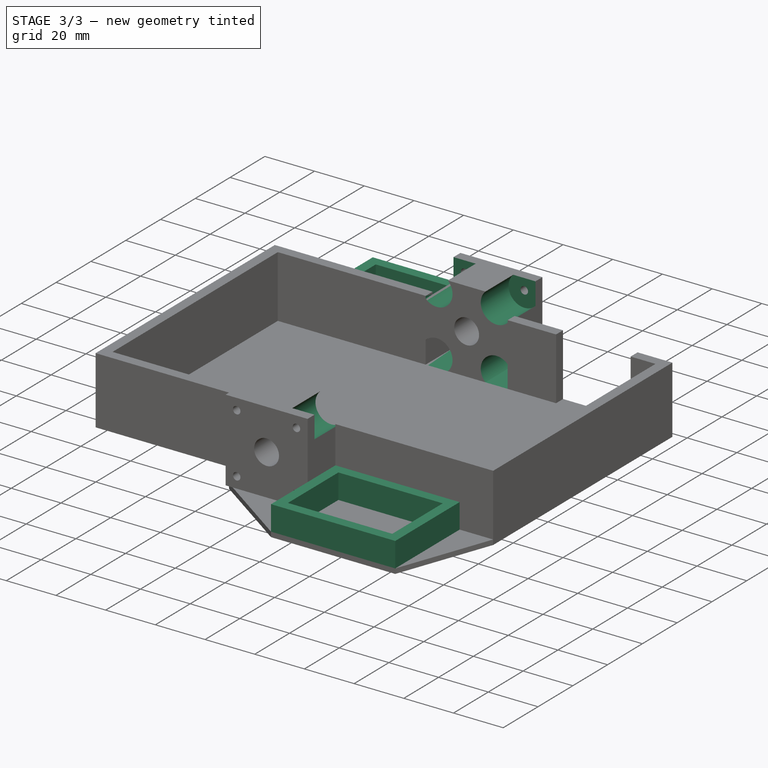
[diagram: stage 3 of 3 — iso view after this stage's code; geometry added in this stage tinted green]
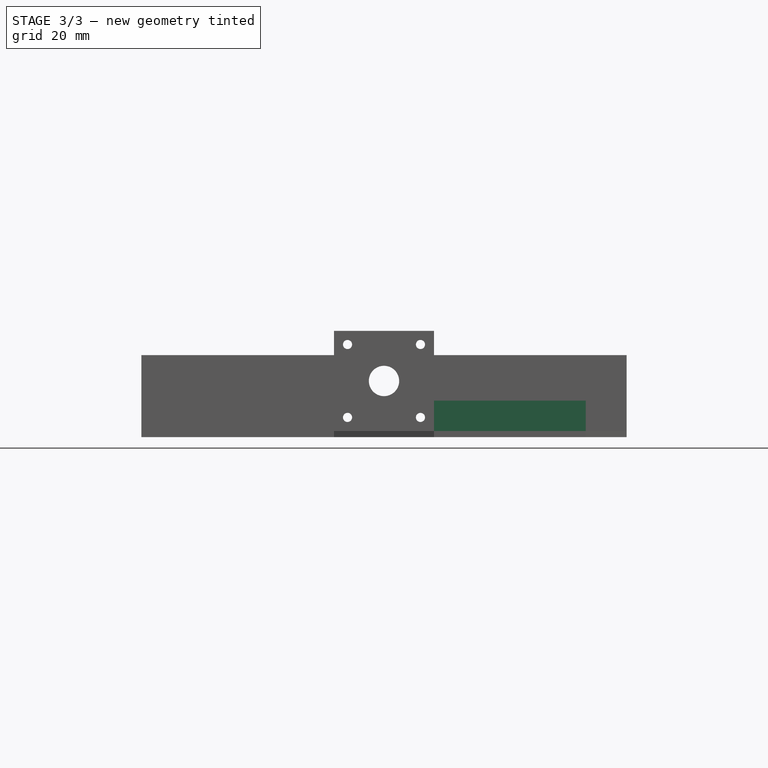
[diagram: stage 3 of 3 — front view after this stage's code; geometry added in this stage tinted green]
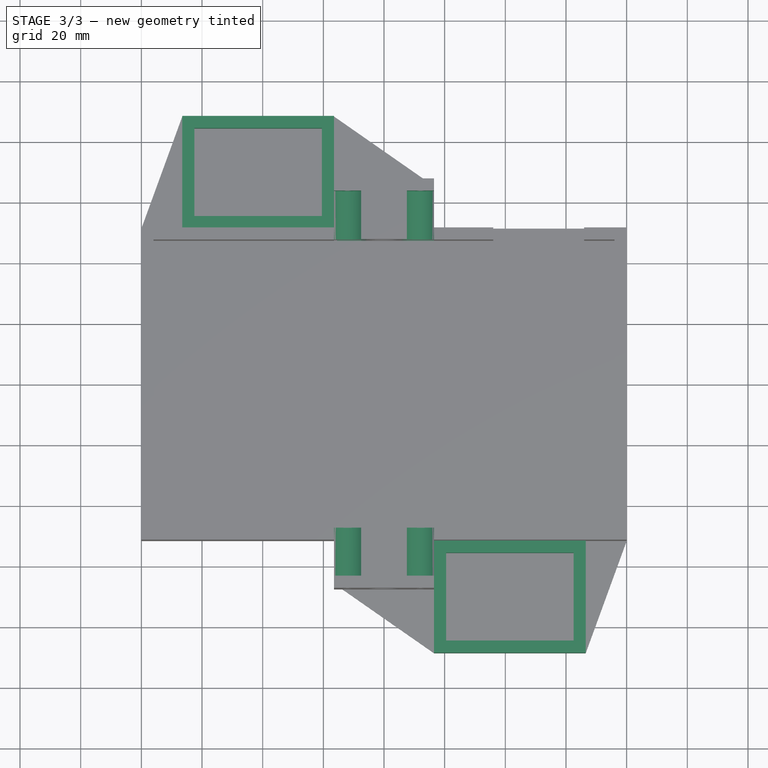
[diagram: stage 3 of 3 — top view after this stage's code; geometry added in this stage tinted green]
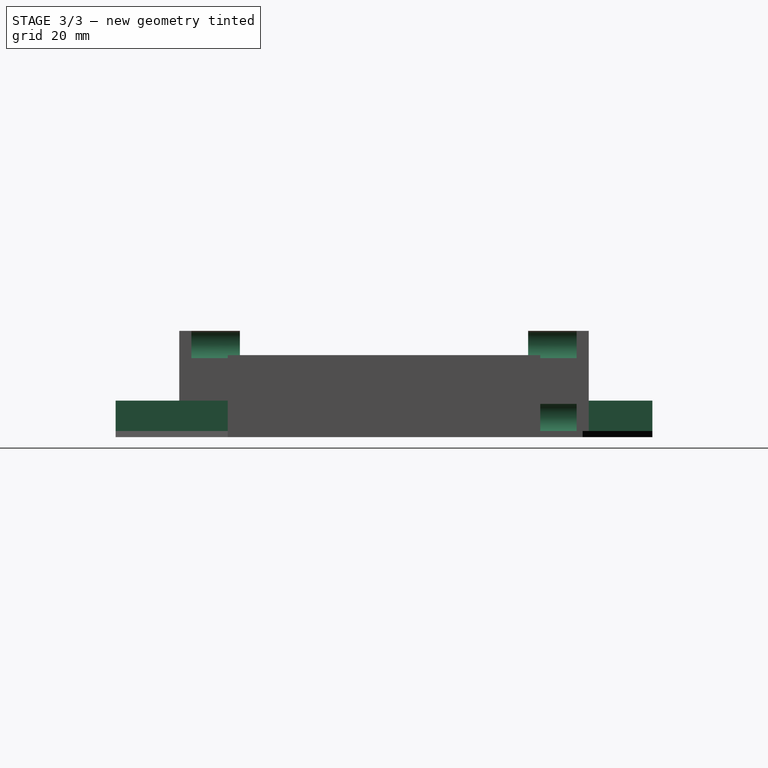
[diagram: stage 3 of 3 — right view after this stage's code; geometry added in this stage tinted green]
FEATURE [PartDesign::Pad] Pad030  label="Motordriver wall"
  BaseFeature = -> Pocket020
  Direction = (0,0,1)
  Length = 10
  Length2 = 10
  Profile = -> Sketch051
  ReferenceAxis = -> Sketch051 [N_Axis]
  Suppressed = false
  Type = 0
FEATURE [PartDesign::Pocket] Pocket021
  BaseFeature = -> Pad030
  Direction = (0,1,-2e-16)
  Length = 127
  Length2 = 5
  Midplane = true
  Profile = -> Sketch058
  ReferenceAxis = -> Sketch058 [N_Axis]
  Suppressed = false
  Type = 0
FEATURE [PartDesign::Body] Body013
  AllowCompound = false
  Group = -> [Sketch046,Pad027,Sketch047,Pad028,Sketch048,Pad029,Sketch050,Pocket020,Sketch051,Pad030,Sketch058,Pocket021]
  Origin = -> Origin021
  Tip = -> Pocket021
FEATURE [App::Part] Part007  label="Chassis V3"
  Group = -> [Body013]
  Origin = -> Origin020
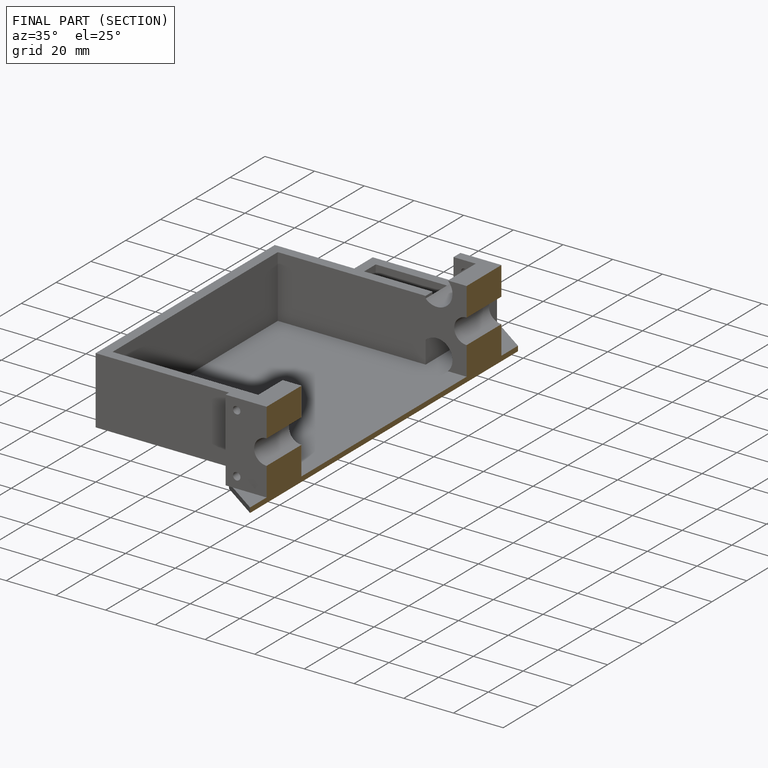
[diagram: finished part — half-section view (interior)]
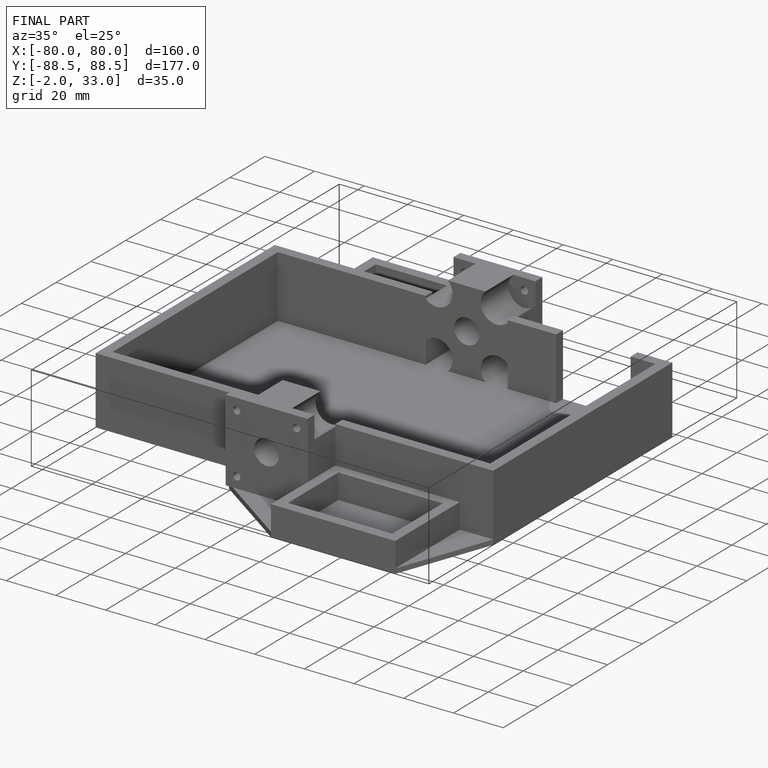
[diagram: finished part — iso view with bounding-box wireframe]
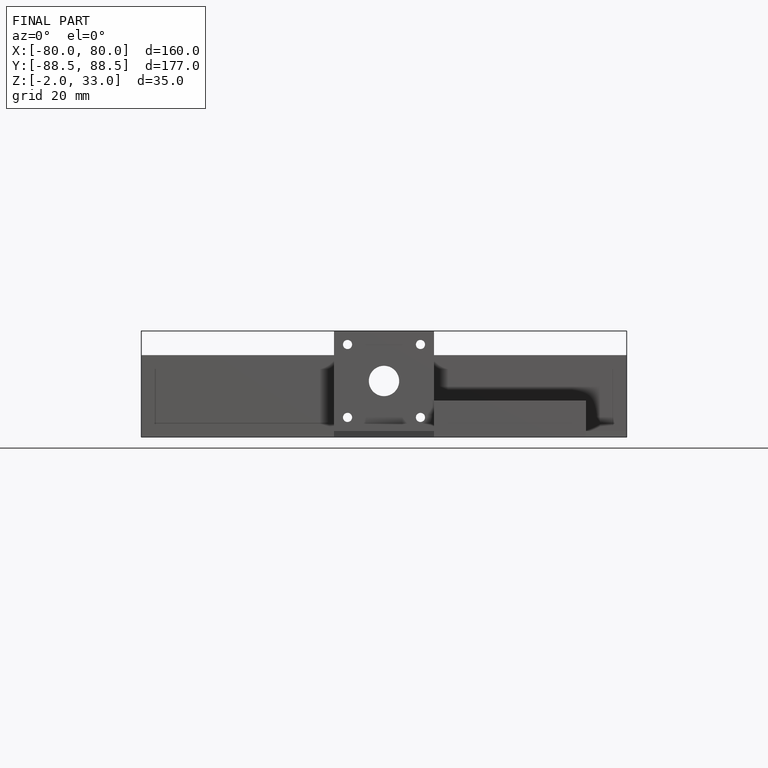
[diagram: finished part — front view with bounding-box wireframe]
